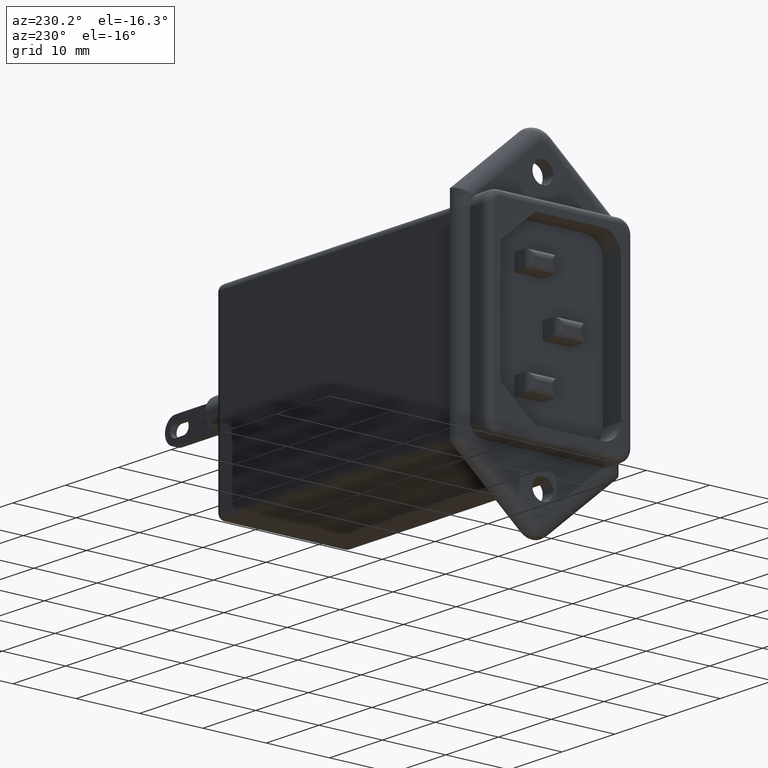
[diagram: clean part render]
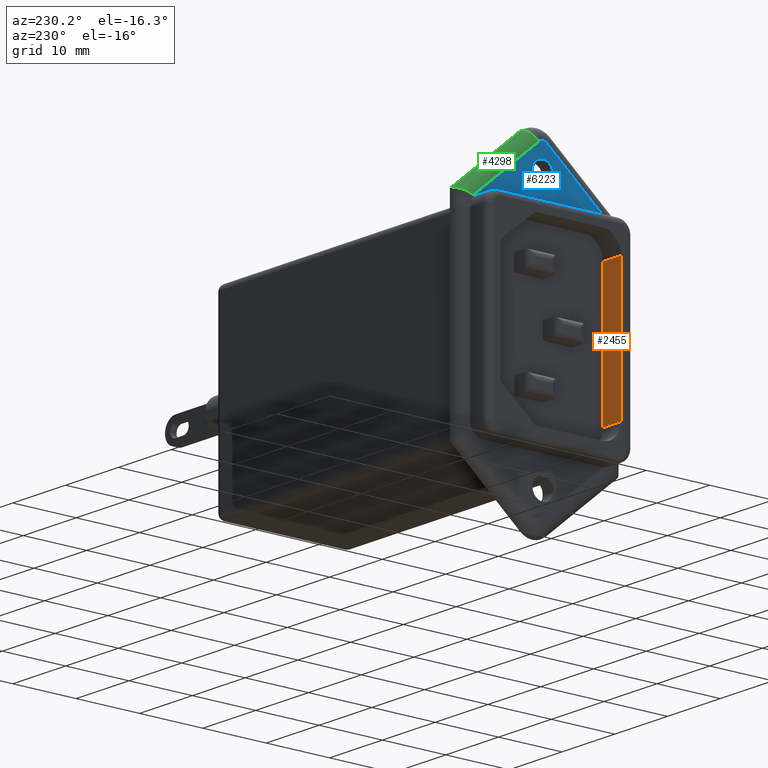
[diagram: same view with three faces highlighted in distinct colors, each labeled with its STEP entity id]
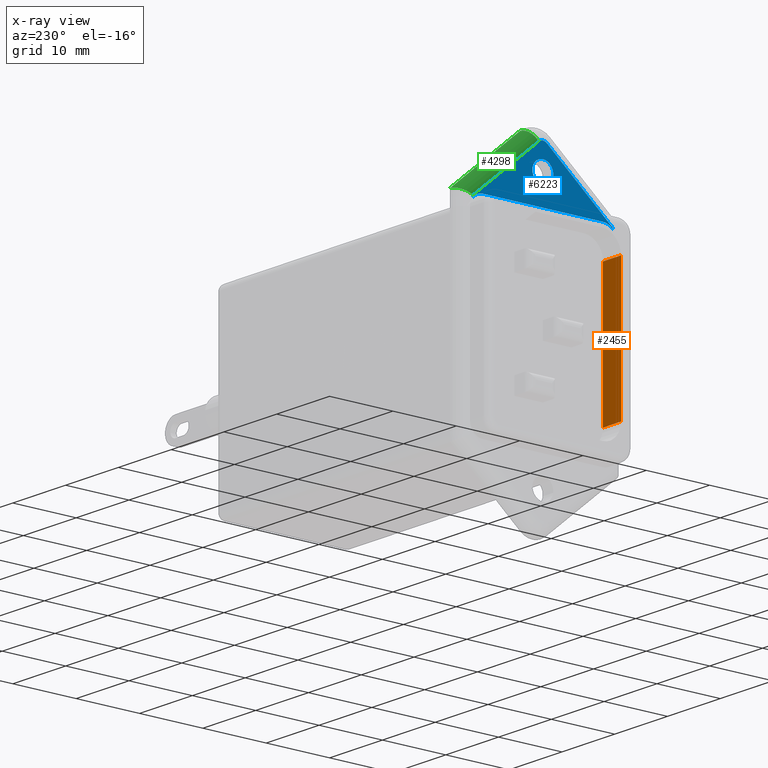
[diagram: x-ray of the same camera — body ghosted, the three highlighted faces saturated]
A machine part, auxiliary view with three faces highlighted in distinct colors.
The next image is the same camera in x-ray (body ghosted, the three faces saturated) — at least one of them is partly hidden behind the body in this view.
Their STEP definitions:

[orange] entity #2455 — the highlighted planar face has unit normal (0, -1, 0).
#281 = EDGE_CURVE ( 'NONE', #6120, #2579, #7611, .T. ) ;
#388 = EDGE_CURVE ( 'NONE', #2579, #6598, #1336, .T. ) ;
#459 = DIRECTION ( 'NONE',  ( -1.000000000000000000, -0.0000000000000000000, -0.0000000000000000000 ) ) ;
#486 = ORIENTED_EDGE ( 'NONE', *, *, #281, .T. ) ;
#652 = CARTESIAN_POINT ( 'NONE',  ( 3.400000000000000400, -21.00000000000000000, 4.999999999999997300 ) ) ;
#728 = DIRECTION ( 'NONE',  ( -1.000000000000000000, -0.0000000000000000000, -0.0000000000000000000 ) ) ;
#1318 = DIRECTION ( 'NONE',  ( 0.0000000000000000000, -1.000000000000000000, 0.0000000000000000000 ) ) ;
#1336 = LINE ( 'NONE', #2667, #2869 ) ;
#1343 = DIRECTION ( 'NONE',  ( 0.0000000000000000000, 0.0000000000000000000, 1.000000000000000000 ) ) ;
#1344 = DIRECTION ( 'NONE',  ( 0.0000000000000000000, -0.0000000000000000000, -1.000000000000000000 ) ) ;
#2231 = LINE ( 'NONE', #4464, #5984 ) ;
#2346 = ORIENTED_EDGE ( 'NONE', *, *, #388, .T. ) ;
#2395 = FACE_OUTER_BOUND ( 'NONE', #4110, .T. ) ;
#2455 = ADVANCED_FACE ( 'NONE', ( #2395 ), #6562, .F. ) ;
#2500 = CARTESIAN_POINT ( 'NONE',  ( 0.0000000000000000000, -21.00000000000000000, 25.99999999999998600 ) ) ;
#2579 = VERTEX_POINT ( 'NONE', #6619 ) ;
#2667 = CARTESIAN_POINT ( 'NONE',  ( 5.500000000000000000, -21.00000000000000000, 4.999999999999997300 ) ) ;
#2869 = VECTOR ( 'NONE', #728, 1000.000000000000000 ) ;
#2971 = EDGE_CURVE ( 'NONE', #6598, #4835, #5649, .T. ) ;
#3871 = VECTOR ( 'NONE', #1343, 1000.000000000000000 ) ;
#4110 = EDGE_LOOP ( 'NONE', ( #4855, #486, #2346, #7077 ) ) ;
#4192 = AXIS2_PLACEMENT_3D ( 'NONE', #8683, #1318, #1344 ) ;
#4464 = CARTESIAN_POINT ( 'NONE',  ( 5.500000000000000000, -21.00000000000000000, 25.99999999999998600 ) ) ;
#4546 = DIRECTION ( 'NONE',  ( 0.0000000000000000000, 0.0000000000000000000, -1.000000000000000000 ) ) ;
#4615 = CARTESIAN_POINT ( 'NONE',  ( 3.400000000000000400, -21.00000000000000000, 25.99999999999998600 ) ) ;
#4835 = VERTEX_POINT ( 'NONE', #2500 ) ;
#4855 = ORIENTED_EDGE ( 'NONE', *, *, #5961, .F. ) ;
#5649 = LINE ( 'NONE', #7330, #3871 ) ;
#5961 = EDGE_CURVE ( 'NONE', #6120, #4835, #2231, .T. ) ;
#5984 = VECTOR ( 'NONE', #459, 1000.000000000000000 ) ;
#6120 = VERTEX_POINT ( 'NONE', #4615 ) ;
#6373 = CARTESIAN_POINT ( 'NONE',  ( 0.0000000000000000000, -21.00000000000000000, 4.999999999999997300 ) ) ;
#6562 = PLANE ( 'NONE',  #4192 ) ;
#6598 = VERTEX_POINT ( 'NONE', #6373 ) ;
#6619 = CARTESIAN_POINT ( 'NONE',  ( 3.400000000000000400, -21.00000000000000000, 4.999999999999997300 ) ) ;
#6761 = VECTOR ( 'NONE', #4546, 1000.000000000000000 ) ;
#7077 = ORIENTED_EDGE ( 'NONE', *, *, #2971, .T. ) ;
#7330 = CARTESIAN_POINT ( 'NONE',  ( 0.0000000000000000000, -21.00000000000000000, 4.999999999999997300 ) ) ;
#7611 = LINE ( 'NONE', #652, #6761 ) ;
#8683 = CARTESIAN_POINT ( 'NONE',  ( 5.500000000000000000, -21.00000000000000000, 4.999999999999997300 ) ) ;

[blue] entity #6223 — the highlighted planar face has unit normal (-1, 0, 0).
#321 = VECTOR ( 'NONE', #5126, 1000.000000000000100 ) ;
#326 = ORIENTED_EDGE ( 'NONE', *, *, #2123, .T. ) ;
#336 = EDGE_CURVE ( 'NONE', #3861, #5423, #8234, .T. ) ;
#365 = CARTESIAN_POINT ( 'NONE',  ( 3.400000000000000400, -11.50000000000000200, 33.85000000000000100 ) ) ;
#395 = DIRECTION ( 'NONE',  ( 0.0000000000000000000, 0.0000000000000000000, 1.000000000000000000 ) ) ;
#523 = DIRECTION ( 'NONE',  ( 0.0000000000000000000, -2.032879073410320300E-016, -1.000000000000000000 ) ) ;
#727 = CARTESIAN_POINT ( 'NONE',  ( 3.400000000000000400, -22.50000000000000000, 30.32287565553230000 ) ) ;
#756 = DIRECTION ( 'NONE',  ( -1.000000000000000000, 0.0000000000000000000, 0.0000000000000000000 ) ) ;
#1036 = ORIENTED_EDGE ( 'NONE', *, *, #4863, .T. ) ;
#1075 = VERTEX_POINT ( 'NONE', #5587 ) ;
#1116 = CARTESIAN_POINT ( 'NONE',  ( 3.400000000000000400, -12.14310929386974500, 39.26577440290096600 ) ) ;
#1173 = DIRECTION ( 'NONE',  ( 0.0000000000000000000, -0.0000000000000000000, 1.000000000000000000 ) ) ;
#1235 = DIRECTION ( 'NONE',  ( 0.0000000000000000000, 0.7657744029009753200, 0.6431092938697547900 ) ) ;
#1284 = CIRCLE ( 'NONE', #6692, 0.9999999999999870100 ) ;
#1456 = DIRECTION ( 'NONE',  ( 0.0000000000000000000, 0.0000000000000000000, 1.000000000000000000 ) ) ;
#1951 = ORIENTED_EDGE ( 'NONE', *, *, #4064, .T. ) ;
#2049 = CARTESIAN_POINT ( 'NONE',  ( 3.400000000000000400, -3.796405077356795100E-015, 31.00000000000000000 ) ) ;
#2123 = EDGE_CURVE ( 'NONE', #3703, #5434, #4885, .T. ) ;
#2158 = EDGE_CURVE ( 'NONE', #6727, #8562, #3977, .T. ) ;
#2166 = CARTESIAN_POINT ( 'NONE',  ( 3.400000000000000400, -21.00000000000000400, 28.99999999999999600 ) ) ;
#2173 = AXIS2_PLACEMENT_3D ( 'NONE', #4551, #6505, #8514 ) ;
#2235 = CARTESIAN_POINT ( 'NONE',  ( 3.400000000000000400, -2.000000000000002700, 29.00000000000000000 ) ) ;
#2290 = ORIENTED_EDGE ( 'NONE', *, *, #336, .F. ) ;
#2437 = CARTESIAN_POINT ( 'NONE',  ( 3.400000000000000400, -0.5000000000000007800, -0.5000000000000065500 ) ) ;
#2468 = CIRCLE ( 'NONE', #6519, 1.999999999999998200 ) ;
#2511 = CARTESIAN_POINT ( 'NONE',  ( 3.400000000000000400, -22.50000000000000000, 30.56789596314986900 ) ) ;
#2519 = CARTESIAN_POINT ( 'NONE',  ( 3.400000000000000400, -12.14310929386973300, 39.26577440290096600 ) ) ;
#2644 = CIRCLE ( 'NONE', #2173, 0.9999999999999870100 ) ;
#2746 = EDGE_LOOP ( 'NONE', ( #2788, #1036, #326, #5747, #8199, #1951, #6258, #5874, #2290 ) ) ;
#2788 = ORIENTED_EDGE ( 'NONE', *, *, #8547, .T. ) ;
#2849 = PLANE ( 'NONE',  #5557 ) ;
#3088 = EDGE_LOOP ( 'NONE', ( #5394, #3966 ) ) ;
#3089 = CARTESIAN_POINT ( 'NONE',  ( 3.400000000000000400, -2.000000000000003100, 31.00000000000000000 ) ) ;
#3104 = CARTESIAN_POINT ( 'NONE',  ( 3.400000000000000400, 0.2137814122604962700, 29.96845119419805000 ) ) ;
#3156 = CIRCLE ( 'NONE', #6459, 2.000000000000001800 ) ;
#3245 = AXIS2_PLACEMENT_3D ( 'NONE', #4900, #4873, #7564 ) ;
#3310 = DIRECTION ( 'NONE',  ( 0.0000000000000000000, 0.0000000000000000000, 1.000000000000000000 ) ) ;
#3578 = VERTEX_POINT ( 'NONE', #5691 ) ;
#3598 = FACE_BOUND ( 'NONE', #3088, .T. ) ;
#3703 = VERTEX_POINT ( 'NONE', #2511 ) ;
#3861 = VERTEX_POINT ( 'NONE', #7191 ) ;
#3939 = VERTEX_POINT ( 'NONE', #365 ) ;
#3966 = ORIENTED_EDGE ( 'NONE', *, *, #5808, .F. ) ;
#3977 = LINE ( 'NONE', #2437, #7732 ) ;
#4007 = EDGE_CURVE ( 'NONE', #5434, #8443, #1284, .T. ) ;
#4064 = EDGE_CURVE ( 'NONE', #1075, #6727, #7248, .T. ) ;
#4079 = CIRCLE ( 'NONE', #3245, 1.649999999999998600 ) ;
#4108 = EDGE_CURVE ( 'NONE', #8443, #1075, #2644, .T. ) ;
#4351 = DIRECTION ( 'NONE',  ( -1.000000000000000000, 0.0000000000000000000, 0.0000000000000000000 ) ) ;
#4445 = VERTEX_POINT ( 'NONE', #727 ) ;
#4457 = CARTESIAN_POINT ( 'NONE',  ( 3.400000000000000400, -11.50000000000000200, 38.50000000000000000 ) ) ;
#4551 = CARTESIAN_POINT ( 'NONE',  ( 3.400000000000000400, -11.50000000000000200, 38.50000000000000000 ) ) ;
#4863 = EDGE_CURVE ( 'NONE', #4445, #3703, #7811, .T. ) ;
#4873 = DIRECTION ( 'NONE',  ( -1.000000000000000000, 0.0000000000000000000, 0.0000000000000000000 ) ) ;
#4885 = LINE ( 'NONE', #2519, #7209 ) ;
#4900 = CARTESIAN_POINT ( 'NONE',  ( 3.400000000000000400, -11.50000000000000200, 35.50000000000000000 ) ) ;
#4950 = FACE_OUTER_BOUND ( 'NONE', #2746, .T. ) ;
#5126 = DIRECTION ( 'NONE',  ( 0.0000000000000000000, 0.7657744029009753200, -0.6431092938697547900 ) ) ;
#5394 = ORIENTED_EDGE ( 'NONE', *, *, #8470, .F. ) ;
#5422 = DIRECTION ( 'NONE',  ( 0.0000000000000000000, 0.0000000000000000000, 1.000000000000000000 ) ) ;
#5423 = VERTEX_POINT ( 'NONE', #3089 ) ;
#5424 = DIRECTION ( 'NONE',  ( 0.0000000000000000000, 1.000000000000000000, 1.508455196501571700E-016 ) ) ;
#5434 = VERTEX_POINT ( 'NONE', #1116 ) ;
#5557 = AXIS2_PLACEMENT_3D ( 'NONE', #6146, #6782, #3310 ) ;
#5587 = CARTESIAN_POINT ( 'NONE',  ( 3.400000000000000400, -10.85689070613024800, 39.26577440290096600 ) ) ;
#5682 = CIRCLE ( 'NONE', #6649, 1.649999999999998600 ) ;
#5691 = CARTESIAN_POINT ( 'NONE',  ( 3.400000000000000400, -11.50000000000000200, 37.14999999999999900 ) ) ;
#5747 = ORIENTED_EDGE ( 'NONE', *, *, #4007, .T. ) ;
#5805 = VECTOR ( 'NONE', #1173, 1000.000000000000000 ) ;
#5808 = EDGE_CURVE ( 'NONE', #3939, #3578, #4079, .T. ) ;
#5874 = ORIENTED_EDGE ( 'NONE', *, *, #8091, .T. ) ;
#6126 = CARTESIAN_POINT ( 'NONE',  ( 3.400000000000000400, -0.4999999999999941700, 30.32287565553228600 ) ) ;
#6146 = CARTESIAN_POINT ( 'NONE',  ( 3.400000000000000400, -11.50000000000000200, -7.500000000000002700 ) ) ;
#6223 = ADVANCED_FACE ( 'NONE', ( #4950, #3598 ), #2849, .T. ) ;
#6258 = ORIENTED_EDGE ( 'NONE', *, *, #2158, .T. ) ;
#6422 = CARTESIAN_POINT ( 'NONE',  ( 3.400000000000000400, -22.50000000000000000, 31.49999999999999300 ) ) ;
#6459 = AXIS2_PLACEMENT_3D ( 'NONE', #2166, #7481, #1456 ) ;
#6505 = DIRECTION ( 'NONE',  ( -1.000000000000000000, 0.0000000000000000000, 0.0000000000000000000 ) ) ;
#6519 = AXIS2_PLACEMENT_3D ( 'NONE', #2235, #6889, #7605 ) ;
#6530 = CARTESIAN_POINT ( 'NONE',  ( 3.400000000000000400, -0.4999999999999946700, 30.56789596314988000 ) ) ;
#6649 = AXIS2_PLACEMENT_3D ( 'NONE', #6878, #756, #5422 ) ;
#6692 = AXIS2_PLACEMENT_3D ( 'NONE', #4457, #4351, #395 ) ;
#6727 = VERTEX_POINT ( 'NONE', #6530 ) ;
#6782 = DIRECTION ( 'NONE',  ( -1.000000000000000000, 0.0000000000000000000, 0.0000000000000000000 ) ) ;
#6878 = CARTESIAN_POINT ( 'NONE',  ( 3.400000000000000400, -11.50000000000000200, 35.50000000000000000 ) ) ;
#6889 = DIRECTION ( 'NONE',  ( 1.000000000000000000, -0.0000000000000000000, -0.0000000000000000000 ) ) ;
#7191 = CARTESIAN_POINT ( 'NONE',  ( 3.400000000000000400, -21.00000000000000400, 30.99999999999999600 ) ) ;
#7209 = VECTOR ( 'NONE', #1235, 1000.000000000000100 ) ;
#7248 = LINE ( 'NONE', #3104, #321 ) ;
#7393 = VECTOR ( 'NONE', #5424, 1000.000000000000000 ) ;
#7481 = DIRECTION ( 'NONE',  ( 1.000000000000000000, -0.0000000000000000000, -0.0000000000000000000 ) ) ;
#7564 = DIRECTION ( 'NONE',  ( 0.0000000000000000000, 0.0000000000000000000, 1.000000000000000000 ) ) ;
#7605 = DIRECTION ( 'NONE',  ( 0.0000000000000000000, -1.734723475976808700E-015, 1.000000000000000000 ) ) ;
#7732 = VECTOR ( 'NONE', #523, 1000.000000000000000 ) ;
#7811 = LINE ( 'NONE', #6422, #5805 ) ;
#7992 = CARTESIAN_POINT ( 'NONE',  ( 3.400000000000000400, -11.50000000000000200, 39.49999999999998600 ) ) ;
#8091 = EDGE_CURVE ( 'NONE', #8562, #5423, #2468, .T. ) ;
#8199 = ORIENTED_EDGE ( 'NONE', *, *, #4108, .T. ) ;
#8234 = LINE ( 'NONE', #2049, #7393 ) ;
#8443 = VERTEX_POINT ( 'NONE', #7992 ) ;
#8470 = EDGE_CURVE ( 'NONE', #3578, #3939, #5682, .T. ) ;
#8514 = DIRECTION ( 'NONE',  ( 0.0000000000000000000, 0.0000000000000000000, 1.000000000000000000 ) ) ;
#8547 = EDGE_CURVE ( 'NONE', #3861, #4445, #3156, .T. ) ;
#8562 = VERTEX_POINT ( 'NONE', #6126 ) ;

[green] entity #4298 — the highlighted cylindrical surface (edge-blend (fillet) strip) has radius 2 mm, axis along (0, -0.7658, 0.6431).
#321 = VECTOR ( 'NONE', #5126, 1000.000000000000100 ) ;
#850 = ORIENTED_EDGE ( 'NONE', *, *, #4064, .F. ) ;
#1075 = VERTEX_POINT ( 'NONE', #5587 ) ;
#1455 = ORIENTED_EDGE ( 'NONE', *, *, #5493, .T. ) ;
#1708 = ORIENTED_EDGE ( 'NONE', *, *, #4702, .F. ) ;
#1891 = CARTESIAN_POINT ( 'NONE',  ( 5.400000000000000400, 1.500000000000006700, 31.50000000000000000 ) ) ;
#1935 = VECTOR ( 'NONE', #5855, 999.9999999999998900 ) ;
#2323 = CARTESIAN_POINT ( 'NONE',  ( 5.400000000000000400, 11.79703452747600400, 20.24065446526484600 ) ) ;
#2525 = AXIS2_PLACEMENT_3D ( 'NONE', #6290, #6360, #7822 ) ;
#2561 = LINE ( 'NONE', #1891, #1935 ) ;
#2982 = AXIS2_PLACEMENT_3D ( 'NONE', #2323, #3641, #7968 ) ;
#3104 = CARTESIAN_POINT ( 'NONE',  ( 3.400000000000000400, 0.2137814122604962700, 29.96845119419805000 ) ) ;
#3364 =( BOUNDED_CURVE ( )  B_SPLINE_CURVE ( 3, ( #6343, #6320, #7083, #5019 ),
 .UNSPECIFIED., .F., .F. ) 
 B_SPLINE_CURVE_WITH_KNOTS ( ( 4, 4 ),
 ( 1.570796326794896800, 3.141592653589793100 ),
 .UNSPECIFIED. ) 
 CURVE ( )  GEOMETRIC_REPRESENTATION_ITEM ( )  RATIONAL_B_SPLINE_CURVE ( ( 1.000000000000000000, 0.8047378541243650500, 0.8047378541243650500, 1.000000000000000000 ) ) 
 REPRESENTATION_ITEM ( '' )  );
#3459 = FACE_OUTER_BOUND ( 'NONE', #3616, .T. ) ;
#3616 = EDGE_LOOP ( 'NONE', ( #4353, #1455, #1708, #850 ) ) ;
#3641 = DIRECTION ( 'NONE',  ( 0.0000000000000000000, -0.7657744029009753200, 0.6431092938697549100 ) ) ;
#3834 = VERTEX_POINT ( 'NONE', #6536 ) ;
#4064 = EDGE_CURVE ( 'NONE', #1075, #6727, #7248, .T. ) ;
#4298 = ADVANCED_FACE ( 'NONE', ( #3459 ), #6180, .T. ) ;
#4353 = ORIENTED_EDGE ( 'NONE', *, *, #5900, .F. ) ;
#4702 = EDGE_CURVE ( 'NONE', #6727, #5326, #3364, .T. ) ;
#5019 = CARTESIAN_POINT ( 'NONE',  ( 5.400000000000000400, 1.500000000000006700, 31.50000000000000000 ) ) ;
#5126 = DIRECTION ( 'NONE',  ( 0.0000000000000000000, 0.7657744029009753200, -0.6431092938697547900 ) ) ;
#5130 = CIRCLE ( 'NONE', #2525, 2.000000000000001300 ) ;
#5326 = VERTEX_POINT ( 'NONE', #7057 ) ;
#5493 = EDGE_CURVE ( 'NONE', #3834, #5326, #2561, .T. ) ;
#5587 = CARTESIAN_POINT ( 'NONE',  ( 3.400000000000000400, -10.85689070613024800, 39.26577440290096600 ) ) ;
#5855 = DIRECTION ( 'NONE',  ( -0.0000000000000000000, 0.7657744029009753200, -0.6431092938697549100 ) ) ;
#5900 = EDGE_CURVE ( 'NONE', #3834, #1075, #5130, .T. ) ;
#6180 = CYLINDRICAL_SURFACE ( 'NONE', #2982, 2.000000000000000000 ) ;
#6290 = CARTESIAN_POINT ( 'NONE',  ( 5.400000000000000400, -10.85689070613024200, 39.26577440290095900 ) ) ;
#6320 = CARTESIAN_POINT ( 'NONE',  ( 3.399999999999999500, 0.6715728752538163700, 31.11390986639396800 ) ) ;
#6343 = CARTESIAN_POINT ( 'NONE',  ( 3.400000000000000400, -0.4999999999999946700, 30.56789596314988000 ) ) ;
#6360 = DIRECTION ( 'NONE',  ( 4.223843830411127200E-015, -0.7657744029009758700, 0.6431092938697542400 ) ) ;
#6530 = CARTESIAN_POINT ( 'NONE',  ( 3.400000000000000400, -0.4999999999999946700, 30.56789596314988000 ) ) ;
#6536 = CARTESIAN_POINT ( 'NONE',  ( 5.400000000000000400, -9.570672118390733700, 40.79732320870291300 ) ) ;
#6727 = VERTEX_POINT ( 'NONE', #6530 ) ;
#7057 = CARTESIAN_POINT ( 'NONE',  ( 5.400000000000000400, 1.500000000000006700, 31.50000000000000000 ) ) ;
#7083 = CARTESIAN_POINT ( 'NONE',  ( 4.228427124746191100, 1.500000000000006000, 31.50000000000000400 ) ) ;
#7248 = LINE ( 'NONE', #3104, #321 ) ;
#7822 = DIRECTION ( 'NONE',  ( 0.0000000000000000000, -0.6431092938697538000, -0.7657744029009762000 ) ) ;
#7968 = DIRECTION ( 'NONE',  ( 0.0000000000000000000, -0.6431092938697551300, -0.7657744029009750900 ) ) ;